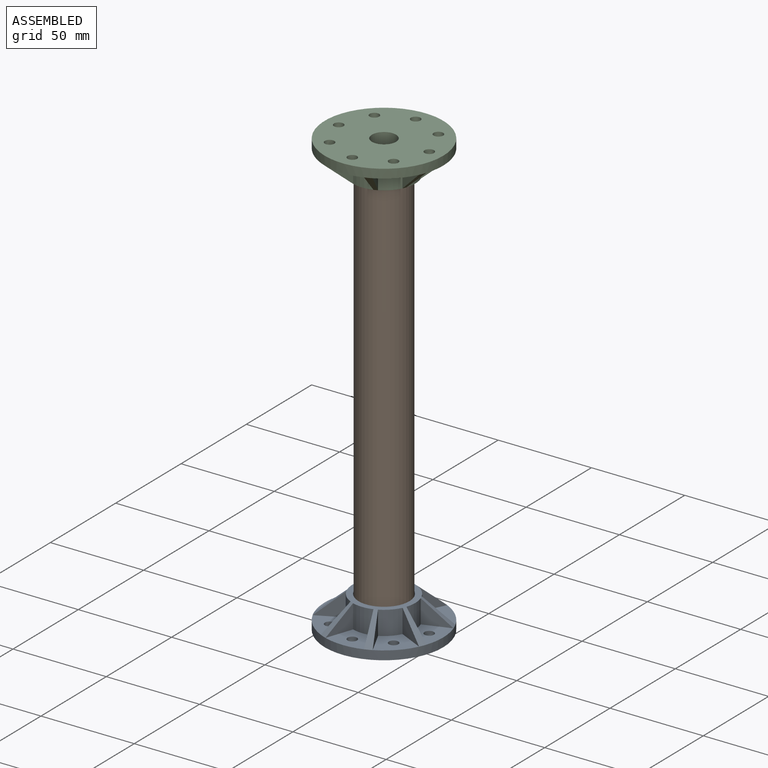
[diagram: assembled view]
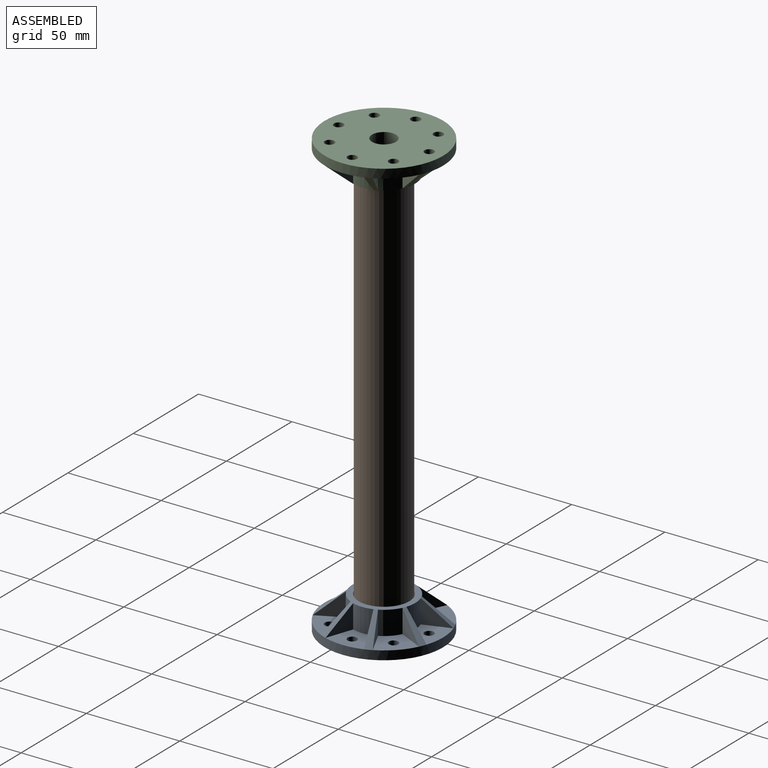
[diagram: assembled view, second angle]
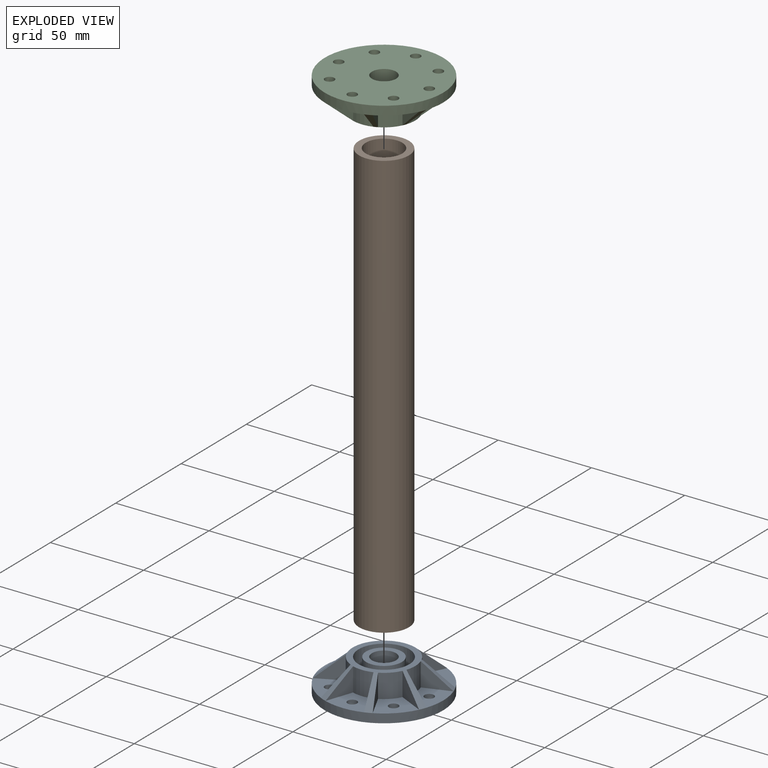
[diagram: exploded view]
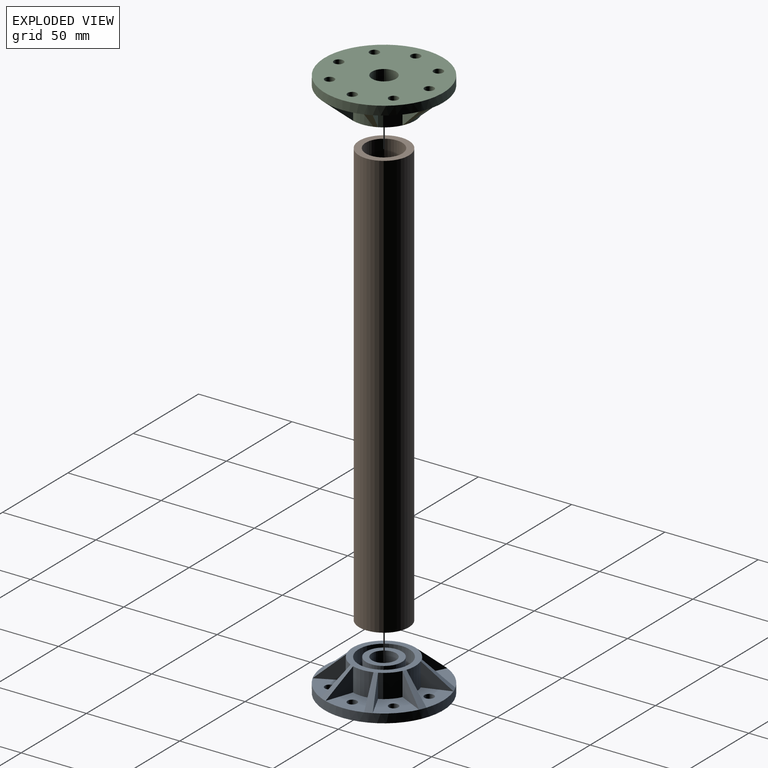
[diagram: exploded view, second angle]
ASSEMBLY  parts=3 mates=2
PART A: 56 faces, bbox 63.5x63.5x17.5 mm
  f0: cone r=16.78mm half-angle=49.7deg, axis (0,0,1), area 58.2mm2, adj f20,f22,f49,f52
  f1: cylinder r=2.54mm len=5.08mm, axis (0,0,1), area 76mm2, adj f21,f54
  f2: cone r=16.78mm half-angle=49.7deg, axis (0,0,1), area 58.2mm2, adj f20,f22,f45,f48
  f3: cylinder r=2.54mm len=5.08mm, axis (0,0,1), area 76mm2, adj f21,f50
  f4: cone r=16.78mm half-angle=49.7deg, axis (0,0,1), area 58.2mm2, adj f20,f22,f41,f44
  f5: cylinder r=2.54mm len=5.08mm, axis (0,0,1), area 76mm2, adj f21,f46
  f6: cone r=16.78mm half-angle=49.7deg, axis (0,0,1), area 58.2mm2, adj f20,f22,f37,f40
  f7: cylinder r=2.54mm len=5.08mm, axis (0,0,1), area 76mm2, adj f21,f42
  f8: cone r=16.78mm half-angle=49.7deg, axis (0,0,1), area 58.2mm2, adj f20,f22,f33,f36
  f9: cylinder r=2.54mm len=5.08mm, axis (0,0,1), area 76mm2, adj f21,f38
  f10: cone r=16.78mm half-angle=49.7deg, axis (0,0,1), area 58.2mm2, adj f20,f22,f29,f32
  f11: cylinder r=2.54mm len=5.08mm, axis (0,0,1), area 76mm2, adj f21,f34
  f12: cone r=16.78mm half-angle=49.7deg, axis (0,0,1), area 58.2mm2, adj f20,f22,f25,f28
  f13: cylinder r=2.54mm len=5.08mm, axis (0,0,1), area 76mm2, adj f21,f30
  f14: cone r=16.78mm half-angle=49.7deg, axis (0,0,1), area 58.2mm2, adj f20,f22,f24,f53
  f15: cylinder r=2.54mm len=5.08mm, axis (0,0,1), area 76mm2, adj f21,f26
  f16: plane 27.2x27.2mm, normal (0,0,-1), area 292.5mm2, adj f17,f19
  f17: cylinder r=9.59mm len=19.17mm, axis (0,0,1), area 764.9mm2, adj f16,f18
  f18: plane 19.17x19.17mm, normal (0,0,-1), area 156.9mm2, adj f17,f23
  f19: cylinder r=13.6mm len=27.2mm, axis (0,0,1), area 1085.4mm2, adj f16,f20
  f20: plane 33.55x33.55mm, normal (0,0,-1), area 303mm2, adj f0,f2,f4,f6,f8,f10,f12,f14
  f21: plane 63.5x63.5mm, normal (0,0,1), area 2873mm2, adj f1,f3,f5,f7,f9,f11,f13,f15
  f22: cylinder r=31.75mm len=63.5mm, axis (0,0,-1), area 950.1mm2, adj f0,f2,f4,f6,f8,f10,f12,f14
  f23: cylinder r=6.48mm len=17.46mm, axis (0,0,-1), area 710.7mm2, adj f18,f21
  f24: plane 14.16x12.7mm, normal (0.95,-0.33,0), area 95.1mm2, adj f14,f26,f27
  f25: plane 14.16x12.7mm, normal (-0.95,-0.33,0), area 95.1mm2, adj f12,f26,f27
  f26: plane 20.67x15.89mm, normal (0,0,-1), area 220.7mm2, adj f15,f22,f24,f25,f27
  f27: cylinder r=16.78mm len=12.7mm, axis (0,0,-1), area 141.3mm2, adj f20,f24,f25,f26
  f28: plane 13.46x12.7mm, normal (0.9,0.44,0), area 95.1mm2, adj f12,f30,f31
  f29: plane 13.46x12.7mm, normal (-0.44,-0.9,0), area 95.1mm2, adj f10,f30,f31
  f30: plane 21.18x21.18mm, normal (0,0,-1), area 220.7mm2, adj f13,f22,f28,f29,f31
  f31: cylinder r=16.78mm len=12.7mm, axis (0,0,-1), area 141.3mm2, adj f20,f28,f29,f30
  f32: plane 14.16x12.7mm, normal (0.33,0.95,0), area 95.1mm2, adj f10,f34,f35
  f33: plane 14.16x12.7mm, normal (0.33,-0.95,0), area 95.1mm2, adj f8,f34,f35
  f34: plane 20.67x15.89mm, normal (0,0,-1), area 220.7mm2, adj f11,f22,f32,f33,f35
  f35: cylinder r=16.78mm len=12.7mm, axis (0,0,-1), area 141.3mm2, adj f20,f32,f33,f34
  f36: plane 13.46x12.7mm, normal (-0.44,0.9,0), area 95.1mm2, adj f8,f38,f39
  f37: plane 13.46x12.7mm, normal (0.9,-0.44,0), area 95.1mm2, adj f6,f38,f39
  f38: plane 21.18x21.18mm, normal (0,0,-1), area 220.7mm2, adj f9,f22,f36,f37,f39
  f39: cylinder r=16.78mm len=12.7mm, axis (0,0,-1), area 141.3mm2, adj f20,f36,f37,f38
  f40: plane 14.16x12.7mm, normal (-0.95,0.33,0), area 95.1mm2, adj f6,f42,f43
  f41: plane 14.16x12.7mm, normal (0.95,0.33,0), area 95.1mm2, adj f4,f42,f43
  f42: plane 20.67x15.89mm, normal (0,0,-1), area 220.7mm2, adj f7,f22,f40,f41,f43
  f43: cylinder r=16.78mm len=12.7mm, axis (0,0,-1), area 141.3mm2, adj f20,f40,f41,f42
  f44: plane 13.46x12.7mm, normal (-0.9,-0.44,0), area 95.1mm2, adj f4,f46,f47
  f45: plane 13.46x12.7mm, normal (0.44,0.9,0), area 95.1mm2, adj f2,f46,f47
  f46: plane 21.18x21.18mm, normal (0,0,-1), area 220.7mm2, adj f5,f22,f44,f45,f47
  f47: cylinder r=16.78mm len=12.7mm, axis (0,0,-1), area 141.3mm2, adj f20,f44,f45,f46
  f48: plane 14.16x12.7mm, normal (-0.33,-0.95,0), area 95.1mm2, adj f2,f50,f51
  f49: plane 14.16x12.7mm, normal (-0.33,0.95,0), area 95.1mm2, adj f0,f50,f51
  f50: plane 20.67x15.89mm, normal (0,0,-1), area 220.7mm2, adj f3,f22,f48,f49,f51
  f51: cylinder r=16.78mm len=12.7mm, axis (0,0,-1), area 141.3mm2, adj f20,f48,f49,f50
  f52: plane 13.46x12.7mm, normal (0.44,-0.9,0), area 95.1mm2, adj f0,f54,f55
  f53: plane 13.46x12.7mm, normal (-0.9,0.44,0), area 95.1mm2, adj f14,f54,f55
  f54: plane 21.18x21.18mm, normal (0,0,-1), area 220.7mm2, adj f1,f22,f52,f53,f55
  f55: cylinder r=16.78mm len=12.7mm, axis (0,0,-1), area 141.3mm2, adj f20,f52,f53,f54
PART B: 4 faces, bbox 26.7x26.7x228.6 mm
  f0: cylinder r=9.78mm len=228.6mm, axis (0,0,-1), area 14045.9mm2, adj f2,f3
  f1: cylinder r=13.33mm len=228.6mm, axis (0,0,-1), area 19153.5mm2, adj f2,f3
  f2: plane 26.67x26.67mm, normal (0,0,1), area 258.2mm2, adj f0,f1
  f3: plane 26.67x26.67mm, normal (0,0,-1), area 258.2mm2, adj f0,f1
PART C: same geometry as A
PLACE A rot(axis=(1,0,0),180deg) t=(14.24,149.47,-190.57)mm
PLACE B t=(14.24,149.47,-190.57)mm
PLACE C t=(14.24,149.47,38.03)mm
MATE planar A.f23 <-> B.f0  axis (0,0,1) through (14.24,149.47,-190.57)mm
MATE planar B.f0 <-> C.f23  axis (0,0,-1) through (14.24,149.47,38.03)mm
